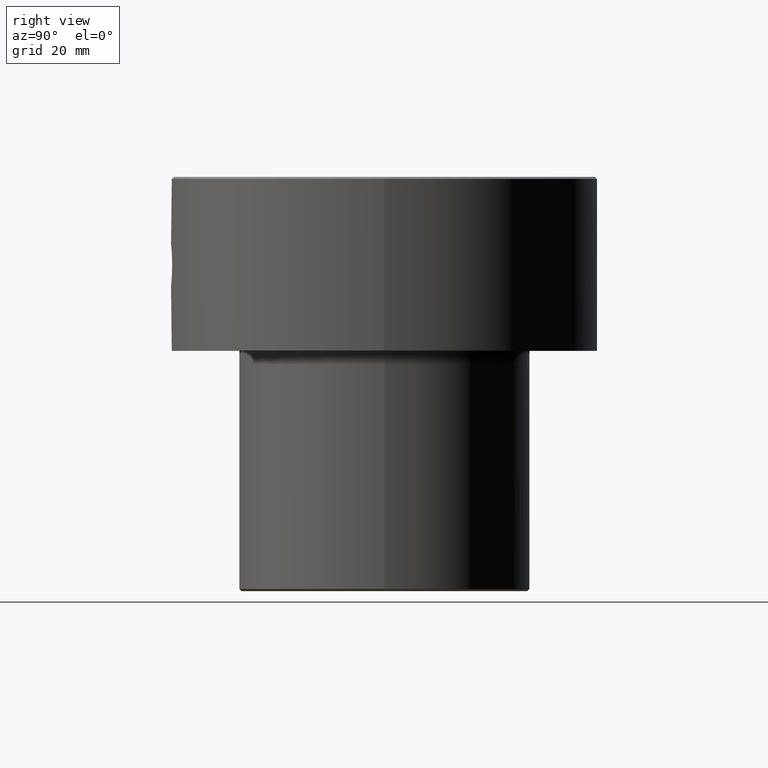
[diagram: clean part render]
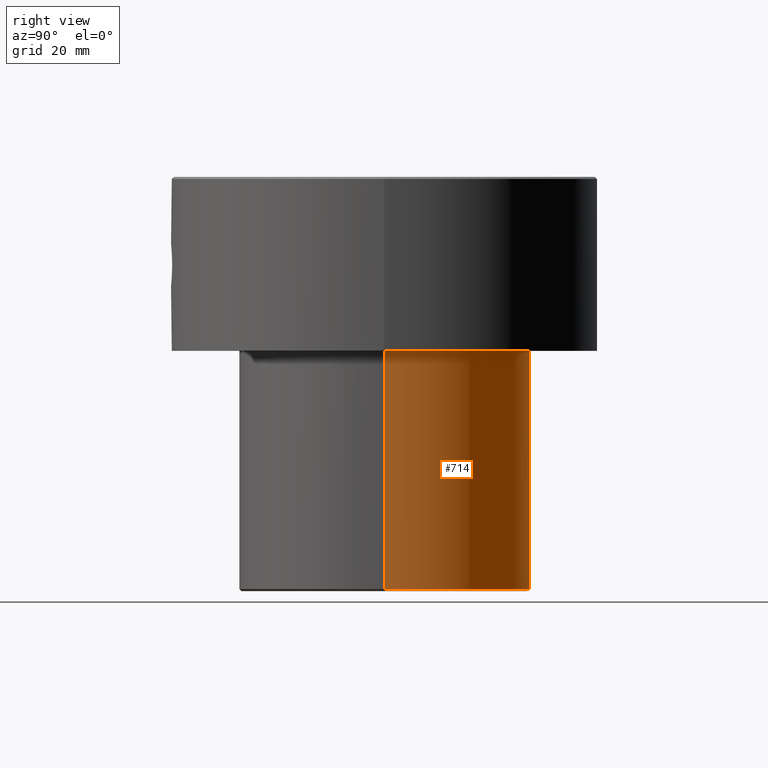
[diagram: same view with one face highlighted and labeled with its STEP entity id]
A machine part, right view. The second image highlights one B-rep face of the part: STEP entity #714.
In plain terms, the highlighted cylindrical surface (partial cylindrical patch) has radius 35 mm, axis along (-0, -0, 1).
Its self-contained STEP definition (entity closure, byte-faithful):
#5 = ORIENTED_EDGE ( 'NONE', *, *, #880, .T. ) ;
#10 = DIRECTION ( 'NONE',  ( -0.000000000000000000, -0.000000000000000000, 1.000000000000000000 ) ) ;
#67 = VECTOR ( 'NONE', #592, 1000.000000000000000 ) ;
#109 = VERTEX_POINT ( 'NONE', #1094 ) ;
#135 = CIRCLE ( 'NONE', #187, 35.00000000000000000 ) ;
#140 = VERTEX_POINT ( 'NONE', #1019 ) ;
#187 = AXIS2_PLACEMENT_3D ( 'NONE', #802, #10, #994 ) ;
#189 = CARTESIAN_POINT ( 'NONE',  ( 35.00000000000000000, 0.000000000000000000, -42.00000000000000000 ) ) ;
#205 = VERTEX_POINT ( 'NONE', #189 ) ;
#246 = ORIENTED_EDGE ( 'NONE', *, *, #1227, .F. ) ;
#276 = VECTOR ( 'NONE', #1061, 1000.000000000000000 ) ;
#373 = EDGE_CURVE ( 'NONE', #852, #140, #681, .T. ) ;
#479 = CARTESIAN_POINT ( 'NONE',  ( 0.000000000000000000, 0.000000000000000000, 0.000000000000000000 ) ) ;
#592 = DIRECTION ( 'NONE',  ( -0.000000000000000000, -0.000000000000000000, 1.000000000000000000 ) ) ;
#667 = ORIENTED_EDGE ( 'NONE', *, *, #373, .T. ) ;
#681 = LINE ( 'NONE', #1251, #276 ) ;
#714 = ADVANCED_FACE ( 'NONE', ( #847 ), #856, .T. ) ;
#757 = DIRECTION ( 'NONE',  ( 1.000000000000000000, 0.000000000000000000, 0.000000000000000000 ) ) ;
#776 = LINE ( 'NONE', #1173, #67 ) ;
#789 = CARTESIAN_POINT ( 'NONE',  ( 0.000000000000000000, 0.000000000000000000, -42.00000000000000000 ) ) ;
#796 = DIRECTION ( 'NONE',  ( -0.000000000000000000, -0.000000000000000000, 1.000000000000000000 ) ) ;
#802 = CARTESIAN_POINT ( 'NONE',  ( 0.000000000000000000, 0.000000000000000000, -99.50000000000004263 ) ) ;
#805 = CIRCLE ( 'NONE', #1123, 35.00000000000000000 ) ;
#847 = FACE_OUTER_BOUND ( 'NONE', #997, .T. ) ;
#852 = VERTEX_POINT ( 'NONE', #1068 ) ;
#856 = CYLINDRICAL_SURFACE ( 'NONE', #906, 35.00000000000000000 ) ;
#869 = ORIENTED_EDGE ( 'NONE', *, *, #897, .F. ) ;
#880 = EDGE_CURVE ( 'NONE', #109, #852, #135, .T. ) ;
#897 = EDGE_CURVE ( 'NONE', #205, #140, #805, .T. ) ;
#906 = AXIS2_PLACEMENT_3D ( 'NONE', #479, #1145, #757 ) ;
#994 = DIRECTION ( 'NONE',  ( -1.000000000000000000, 0.000000000000000000, 0.000000000000000000 ) ) ;
#997 = EDGE_LOOP ( 'NONE', ( #5, #667, #869, #246 ) ) ;
#1019 = CARTESIAN_POINT ( 'NONE',  ( -35.00000000000000000, 4.286263797015736496E-15, -42.00000000000000000 ) ) ;
#1061 = DIRECTION ( 'NONE',  ( -0.000000000000000000, -0.000000000000000000, 1.000000000000000000 ) ) ;
#1068 = CARTESIAN_POINT ( 'NONE',  ( -35.00000000000000000, 4.286263797015736496E-15, -99.50000000000004263 ) ) ;
#1094 = CARTESIAN_POINT ( 'NONE',  ( 35.00000000000000000, 0.000000000000000000, -99.50000000000004263 ) ) ;
#1123 = AXIS2_PLACEMENT_3D ( 'NONE', #789, #796, #1169 ) ;
#1145 = DIRECTION ( 'NONE',  ( -0.000000000000000000, -0.000000000000000000, 1.000000000000000000 ) ) ;
#1169 = DIRECTION ( 'NONE',  ( 1.000000000000000000, 0.000000000000000000, 0.000000000000000000 ) ) ;
#1173 = CARTESIAN_POINT ( 'NONE',  ( 35.00000000000000000, 0.000000000000000000, 0.000000000000000000 ) ) ;
#1227 = EDGE_CURVE ( 'NONE', #109, #205, #776, .T. ) ;
#1251 = CARTESIAN_POINT ( 'NONE',  ( -35.00000000000000000, 4.286263797015736496E-15, 0.000000000000000000 ) ) ;